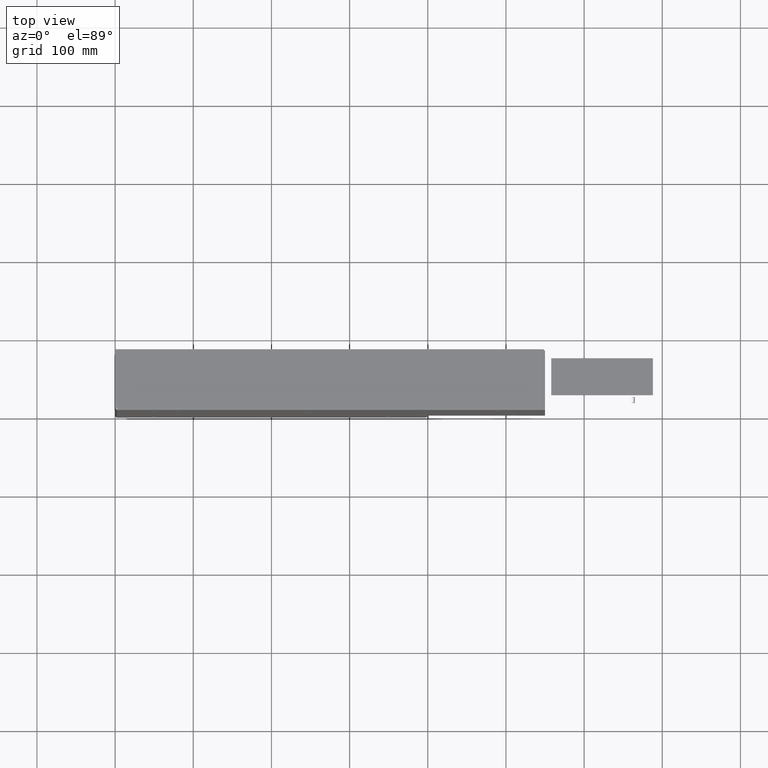
[diagram: clean part render]
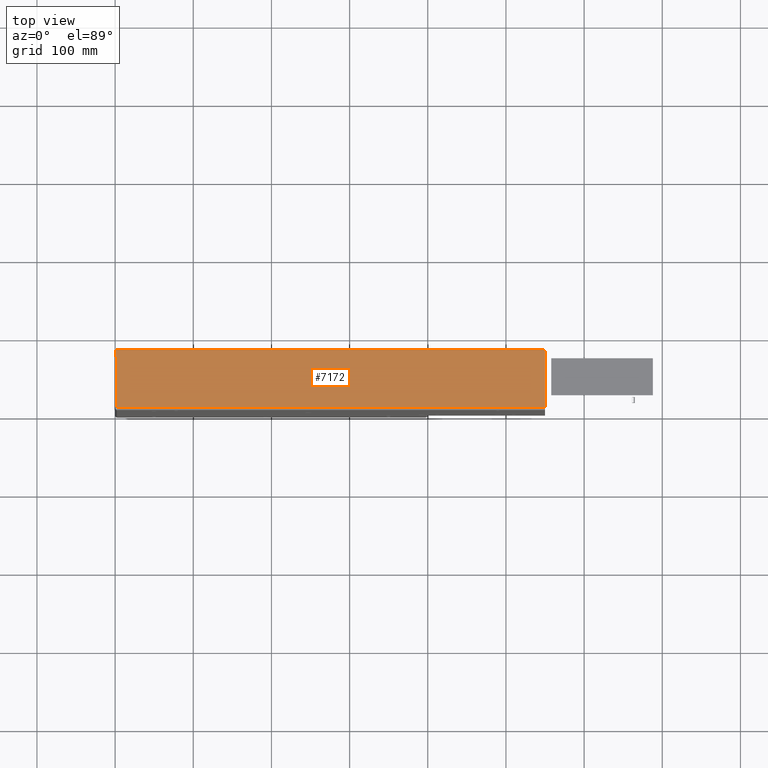
[diagram: same view with one face highlighted and labeled with its STEP entity id]
A machine part, top view. The second image highlights one B-rep face of the part: STEP entity #7172.
In plain terms, the highlighted planar face has unit normal (0, 0, 1).
Its self-contained STEP definition (entity closure, byte-faithful):
#4962=DIRECTION('',(0.E0,4.218847493576E-14,1.E0));
#4963=VECTOR('',#4962,9.999999999999E-1);
#4964=CARTESIAN_POINT('',(2.E2,3.E0,5.47E2));
#4965=LINE('',#4964,#4963);
#4969=DIRECTION('',(-1.574125445376E-14,1.E0,0.E0));
#4970=VECTOR('',#4969,6.5E1);
#4971=CARTESIAN_POINT('',(2.E2,3.E0,5.48E2));
#4972=LINE('',#4971,#4970);
#4976=DIRECTION('',(-1.578983857245E-14,0.E0,-1.E0));
#4977=VECTOR('',#4976,1.8E0);
#4978=CARTESIAN_POINT('',(2.E2,6.8E1,5.498E2));
#4979=LINE('',#4978,#4977);
#4983=DIRECTION('',(1.421085471520E-14,-1.E0,0.E0));
#4984=VECTOR('',#4983,1.E1);
#4985=CARTESIAN_POINT('',(2.E2,7.8E1,5.498E2));
#4986=LINE('',#4985,#4984);
#4990=DIRECTION('',(-1.004859173558E-14,7.071067811865E-1,7.071067811865E-1));
#4991=VECTOR('',#4990,2.828427124746E0);
#4992=CARTESIAN_POINT('',(2.E2,7.6E1,0.E0));
#4993=LINE('',#4992,#4991);
#4997=DIRECTION('',(0.E0,0.E0,1.E0));
#4998=VECTOR('',#4997,5.47E2);
#4999=CARTESIAN_POINT('',(2.E2,3.E0,0.E0));
#5000=LINE('',#4999,#4998);
#5078=DIRECTION('',(-1.518420092857E-14,1.E0,0.E0));
#5079=VECTOR('',#5078,7.3E1);
#5080=CARTESIAN_POINT('',(2.E2,3.E0,0.E0));
#5081=LINE('',#5080,#5079);
#5085=DIRECTION('',(0.E0,0.E0,1.E0));
#5086=VECTOR('',#5085,5.478E2);
#5087=CARTESIAN_POINT('',(2.E2,7.8E1,2.E0));
#5088=LINE('',#5087,#5086);
#6857=CARTESIAN_POINT('',(2.E2,7.6E1,0.E0));
#6858=CARTESIAN_POINT('',(2.E2,7.8E1,2.E0));
#6859=VERTEX_POINT('',#6857);
#6860=VERTEX_POINT('',#6858);
#6865=CARTESIAN_POINT('',(2.E2,3.E0,0.E0));
#6866=VERTEX_POINT('',#6865);
#7045=CARTESIAN_POINT('',(2.E2,3.E0,5.47E2));
#7046=CARTESIAN_POINT('',(2.E2,3.E0,5.48E2));
#7047=VERTEX_POINT('',#7045);
#7048=VERTEX_POINT('',#7046);
#7105=CARTESIAN_POINT('',(2.E2,7.8E1,5.498E2));
#7106=CARTESIAN_POINT('',(2.E2,6.8E1,5.498E2));
#7107=VERTEX_POINT('',#7105);
#7108=VERTEX_POINT('',#7106);
#7109=CARTESIAN_POINT('',(2.E2,6.8E1,5.48E2));
#7110=VERTEX_POINT('',#7109);
#7149=CARTESIAN_POINT('',(2.E2,3.E0,0.E0));
#7150=DIRECTION('',(1.E0,1.520129336171E-14,0.E0));
#7151=DIRECTION('',(-1.520129336171E-14,1.E0,0.E0));
#7152=AXIS2_PLACEMENT_3D('',#7149,#7150,#7151);
#7153=PLANE('',#7152);
#7155=ORIENTED_EDGE('',*,*,#7154,.T.);
#7157=ORIENTED_EDGE('',*,*,#7156,.T.);
#7159=ORIENTED_EDGE('',*,*,#7158,.F.);
#7161=ORIENTED_EDGE('',*,*,#7160,.F.);
#7163=ORIENTED_EDGE('',*,*,#7162,.F.);
#7165=ORIENTED_EDGE('',*,*,#7164,.F.);
#7167=ORIENTED_EDGE('',*,*,#7166,.F.);
#7169=ORIENTED_EDGE('',*,*,#7168,.T.);
#7170=EDGE_LOOP('',(#7155,#7157,#7159,#7161,#7163,#7165,#7167,#7169));
#7171=FACE_OUTER_BOUND('',#7170,.F.);
#7154=EDGE_CURVE('',#7047,#7048,#4965,.T.);
#7156=EDGE_CURVE('',#7048,#7110,#4972,.T.);
#7158=EDGE_CURVE('',#7108,#7110,#4979,.T.);
#7160=EDGE_CURVE('',#7107,#7108,#4986,.T.);
#7162=EDGE_CURVE('',#6860,#7107,#5088,.T.);
#7164=EDGE_CURVE('',#6859,#6860,#4993,.T.);
#7166=EDGE_CURVE('',#6866,#6859,#5081,.T.);
#7168=EDGE_CURVE('',#6866,#7047,#5000,.T.);
#7172=ADVANCED_FACE('',(#7171),#7153,.T.);